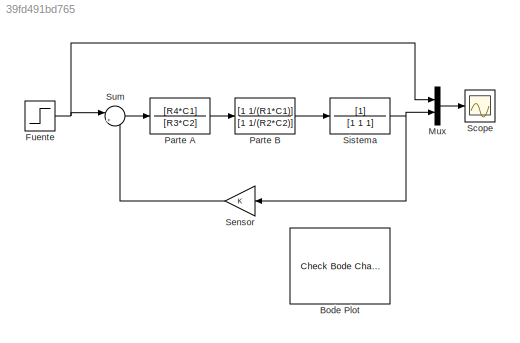
MODEL slx_39fd491bd765
KIND model
CONFIG AbsTol = auto
CONFIG FixedStep = auto
CONFIG MaxStep = auto
CONFIG MinStep = auto
CONFIG RelTol = 1e-3
CONFIG SampleTimeConstraint = Unconstrained
CONFIG Solver = ode45
CONFIG SolverMode = Auto
CONFIG SolverName = ode45
CONFIG StartTime = 0.0
CONFIG StopTime = 10.0
BLOCK [Reference] Bode Plot  REF=slctrlblks/Model Verification/Check Bode 
Characteristics
  EnableLowerBound = off
  EnableUpperBound = off
  FrequencyUnits = rad/s
  InstantiateOnLoad = on
  LaunchViewOnOpen = off
  LinearizationIOs = {}
  LinearizeAt = SnapshotTimes
  LowerBoundFrequencies = []
  LowerBoundMagnitudes = []
  MagnitudeUnits = dB
  OpenViewOnLoad = off
  PhaseUnits = deg
  Ports = []
  PreWarpFreq = 10
  RateConversionMethod = zoh
  SampleTime = auto
  SaveName = sys
  SaveOperatingPoints = off
  SaveToWorkspace = off
  SnapshotTimes = [0]
  SourceBlock = slctrlblks/Model Verification/Check Bode \nCharacteristics
  SourceType = Checks_Bode
  TimeUnits = seconds
  TriggerType = rising
  UpperBoundFrequencies = []
  UpperBoundMagnitudes = []
  UseBusSignalLabels = off
  UseExactDelayModel = off
  UseFullBlockNameLabels = off
  ViewDlgPos = []
  ZeroCross = on
  enabled = on
  export = off
  stopWhenAssertionFail = off
BLOCK [Step] Fuente
  SampleTime = 0
BLOCK [Mux] Mux
  DisplayOption = bar
  Inputs = 2
  Ports = [2, 1]
BLOCK [TransferFcn] Parte A
  Denominator = [R3*C2]
  Numerator = [R4*C1]
BLOCK [TransferFcn] Parte B
  Denominator = [1 1/(R2*C2)]
  Numerator = [1 1/(R1*C1)]
BLOCK [Scope] Scope
  Floating = off
  NumInputPorts = 1
  Ports = [1]
BLOCK [Gain] Sensor
  OutDataTypeStr = Inherit: Inherit via internal rule
  ParamDataTypeStr = Inherit: Inherit via internal rule
  SaturateOnIntegerOverflow = off
BLOCK [TransferFcn] Sistema
  Denominator = [1 1 1]
BLOCK [Sum] Sum
  IconShape = round
  InputSameDT = off
  Inputs = |+-
  OutDataTypeStr = Inherit: Inherit via internal rule
  Ports = [2, 1]
  SaturateOnIntegerOverflow = off
NET Fuente:1 -> Mux:1, Sum:1
LINE Mux:1 -> Scope:1
LINE Parte A:1 -> Parte B:1
LINE Parte B:1 -> Sistema:1
LINE Sensor:1 -> Sum:2
NET Sistema:1 -> Mux:2, Sensor:1
LINE Sum:1 -> Parte A:1
note: NET lines group one-source signal fan-out (src -> all destinations, sorted); 1:1 wires keep LINE
